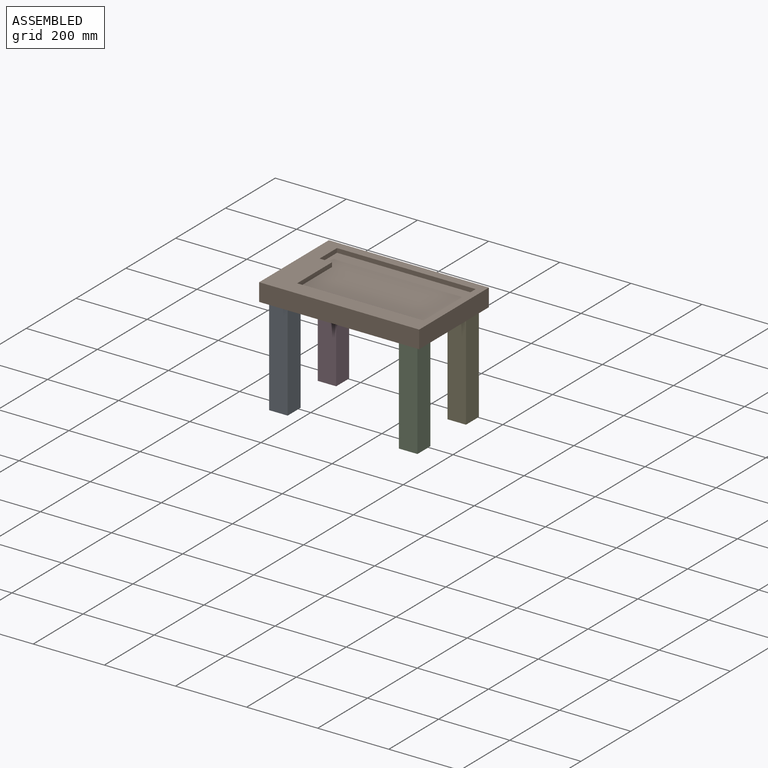
[diagram: assembled view]
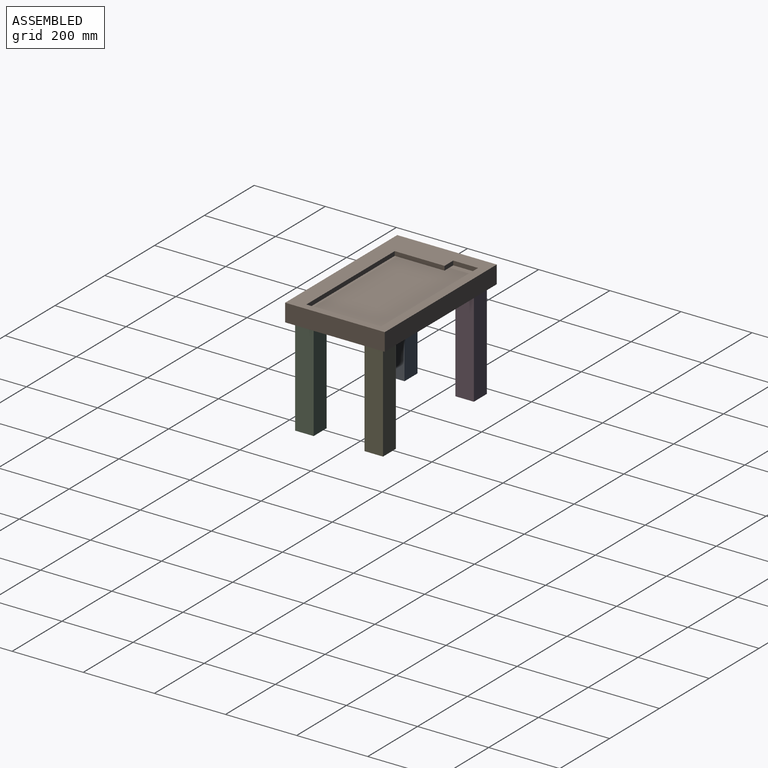
[diagram: assembled view, second angle]
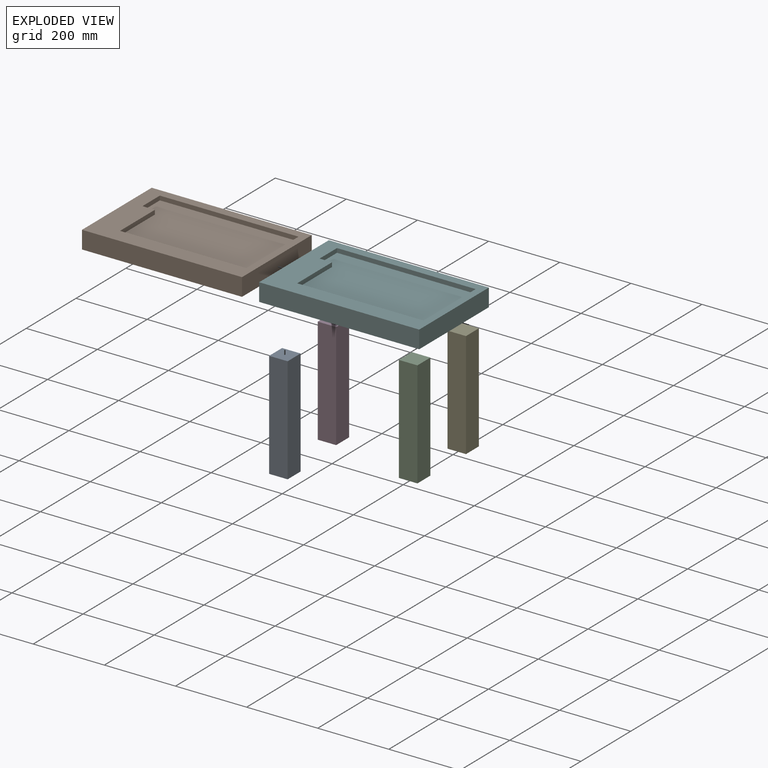
[diagram: exploded view]
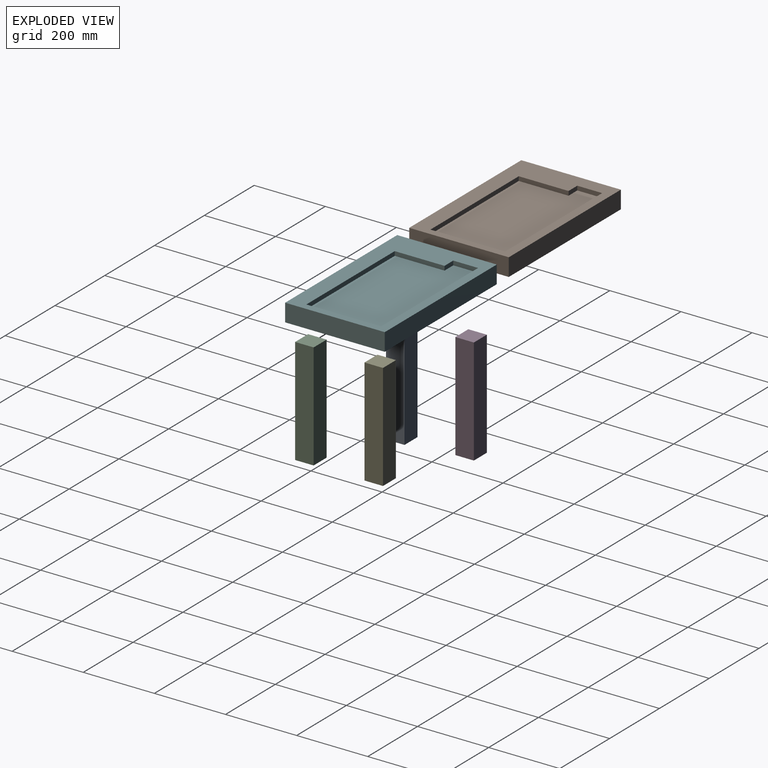
[diagram: exploded view, second angle]
ASSEMBLY  parts=6 mates=3
PART A: 6 faces, bbox 52x52x300 mm
  f0: plane 300x52mm, normal (-1,0,0), area 15600mm2, adj f1,f3,f4,f5
  f1: plane 300x52mm, normal (0,-1,0), area 15600mm2, adj f0,f2,f4,f5
  f2: plane 300x52mm, normal (1,0,0), area 15600mm2, adj f1,f3,f4,f5
  f3: plane 300x52mm, normal (0,1,0), area 15600mm2, adj f0,f2,f4,f5
  f4: plane 52x52mm, normal (0,0,1), area 2704mm2, adj f0,f1,f2,f3
  f5: plane 52x52mm, normal (0,0,-1), area 2704mm2, adj f0,f1,f2,f3
PART B: 33 faces, bbox 450x280x50 mm
  f0: plane 450x280mm, normal (0,0,-1), area 113900mm2, adj f2,f3,f4,f5,f13,f14,f15,f16
  f1: plane 450x280mm, normal (0,0,1), area 49000mm2, adj f2,f3,f4,f5,f6,f7,f8,f10
  f2: plane 450x50mm, normal (0,1,0), area 22500mm2, adj f0,f1,f3,f5
  f3: plane 280x50mm, normal (-1,0,0), area 14000mm2, adj f0,f1,f2,f4
  f4: plane 450x50mm, normal (0,-1,0), area 22500mm2, adj f0,f1,f3,f5
  f5: plane 280x50mm, normal (1,0,0), area 14000mm2, adj f0,f1,f2,f4
  f6: plane 390x12mm, normal (0,-1,0), area 4680mm2, adj f1,f7,f9,f11
  f7: plane 70x12mm, normal (1,0,0), area 840mm2, adj f1,f6,f8,f9
  f8: plane 35x12mm, normal (0,1,0), area 420mm2, adj f1,f7,f9,f10
  f9: plane 390x210mm, normal (0,0,1), area 77000mm2, adj f6,f7,f8,f10,f11,f12
  f10: plane 140x12mm, normal (1,0,0), area 1680mm2, adj f1,f8,f9,f12
  f11: plane 210x12mm, normal (-1,0,0), area 2520mm2, adj f1,f6,f9,f12
  f12: plane 355x12mm, normal (0,1,0), area 4260mm2, adj f1,f9,f10,f11
  f13: plane 55x23mm, normal (0,1,0), area 1265mm2, adj f0,f14,f16,f17
  f14: plane 55x23mm, normal (1,0,0), area 1265mm2, adj f0,f13,f15,f17
  f15: plane 55x23mm, normal (0,-1,0), area 1265mm2, adj f0,f14,f16,f17
  f16: plane 55x23mm, normal (-1,0,0), area 1265mm2, adj f0,f13,f15,f17
  f17: plane 55x55mm, normal (0,0,-1), area 3025mm2, adj f13,f14,f15,f16
  f18: plane 55x23mm, normal (0,1,0), area 1265mm2, adj f0,f19,f21,f22
  f19: plane 55x23mm, normal (1,0,0), area 1265mm2, adj f0,f18,f20,f22
  f20: plane 55x23mm, normal (0,-1,0), area 1265mm2, adj f0,f19,f21,f22
  f21: plane 55x23mm, normal (-1,0,0), area 1265mm2, adj f0,f18,f20,f22
  f22: plane 55x55mm, normal (0,0,-1), area 3025mm2, adj f18,f19,f20,f21
  f23: plane 55x23mm, normal (0,1,0), area 1265mm2, adj f0,f24,f26,f27
  f24: plane 55x23mm, normal (1,0,0), area 1265mm2, adj f0,f23,f25,f27
  f25: plane 55x23mm, normal (0,-1,0), area 1265mm2, adj f0,f24,f26,f27
  f26: plane 55x23mm, normal (-1,0,0), area 1265mm2, adj f0,f23,f25,f27
  f27: plane 55x55mm, normal (0,0,-1), area 3025mm2, adj f23,f24,f25,f26
  f28: plane 55x23mm, normal (0,1,0), area 1265mm2, adj f0,f29,f31,f32
  f29: plane 55x23mm, normal (1,0,0), area 1265mm2, adj f0,f28,f30,f32
  f30: plane 55x23mm, normal (0,-1,0), area 1265mm2, adj f0,f29,f31,f32
  f31: plane 55x23mm, normal (-1,0,0), area 1265mm2, adj f0,f28,f30,f32
  f32: plane 55x55mm, normal (0,0,-1), area 3025mm2, adj f28,f29,f30,f31
PART C: same geometry as A
PART D: same geometry as A
PART E: same geometry as A
PART F: same geometry as B
PLACE A t=(-256.87,-123.63,-276.55)mm
PLACE B t=(-6.03,23.92,0.45)mm
PLACE C t=(108.13,-123.63,-276.55)mm
PLACE D t=(-256.87,71.37,-276.55)mm
PLACE E t=(108.13,71.37,-276.55)mm
PLACE F t=(-6.03,23.92,0.45)mm
MATE fastened C.f4 <-> B.f22  axis (0,0,1) through (115.73,-119.08,23.45)mm
MATE fastened D.f4 <-> B.f32  axis (0,0,1) through (-249.27,75.92,23.45)mm
MATE fastened A.f4 <-> B.f17  axis (0,0,1) through (-249.27,-119.08,23.45)mm
